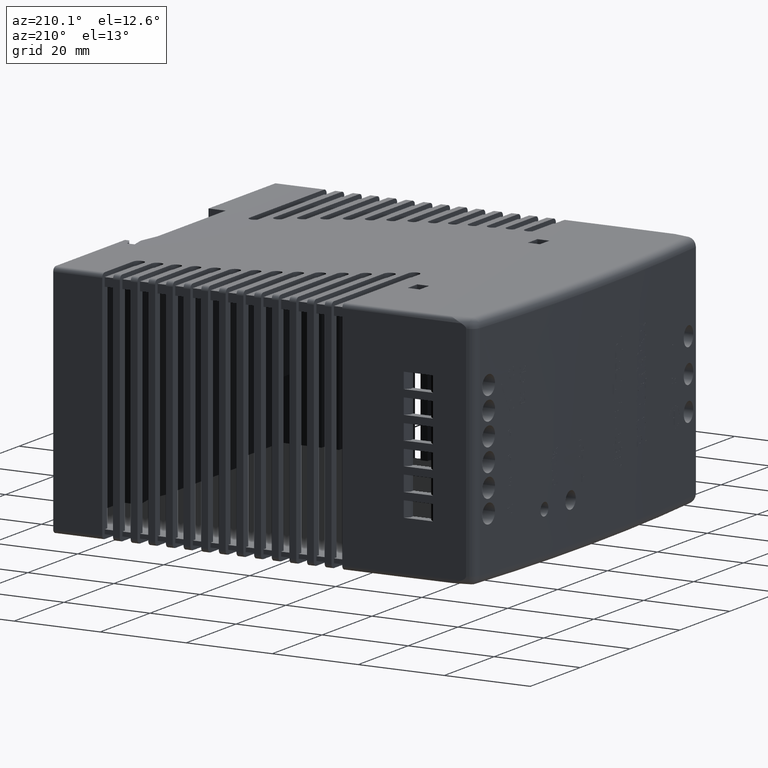
[diagram: clean part render]
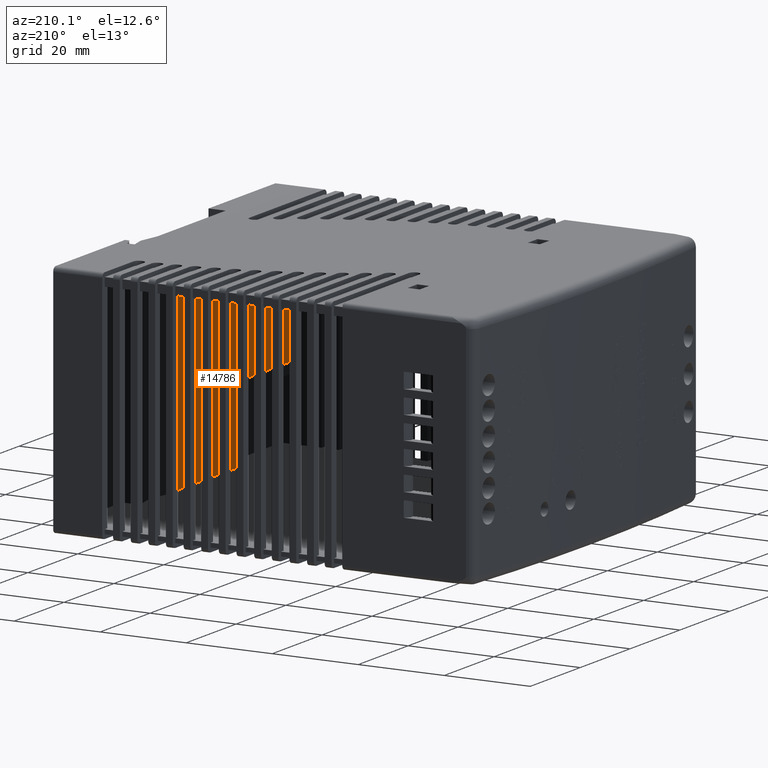
[diagram: same view with one face highlighted and labeled with its STEP entity id]
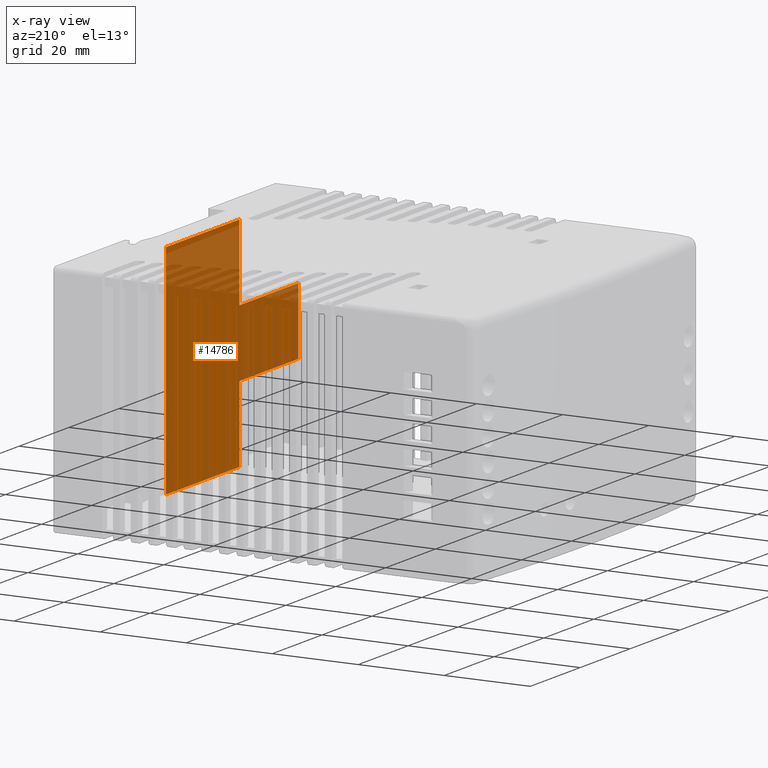
[diagram: x-ray of the same camera — body ghosted, the highlighted face saturated]
A machine part, auxiliary view. The second image highlights one B-rep face of the part: STEP entity #14786.
The next image is the same camera in x-ray: the body ghosted, the highlighted face saturated — about 75% of this face is hidden behind the body in this view.
In plain terms, the highlighted planar face has unit normal (1, 0, 0).
Its self-contained STEP definition (entity closure, byte-faithful):
#9848=CARTESIAN_POINT('',(42.583936774582554,10.720104148547074,19.700000000000006));
#9849=VERTEX_POINT('',#9848);
#9856=CARTESIAN_POINT('',(42.583936774582568,10.720104148547076,2.0));
#9857=VERTEX_POINT('',#9856);
#9858=CARTESIAN_POINT('',(42.583936774582568,10.720104148547076,2.0));
#9859=DIRECTION('',(0.0,0.0,1.0));
#9860=VECTOR('',#9859,17.700000000000006);
#9861=LINE('',#9858,#9860);
#9862=EDGE_CURVE('',#9857,#9849,#9861,.T.);
#9889=CARTESIAN_POINT('',(42.583936774582568,10.720104148547076,52.999999999999986));
#9890=VERTEX_POINT('',#9889);
#9897=CARTESIAN_POINT('',(42.583936774582554,10.720104148547074,35.300000000000004));
#9898=VERTEX_POINT('',#9897);
#9899=CARTESIAN_POINT('',(42.583936774582554,10.720104148547074,35.300000000000004));
#9900=DIRECTION('',(0.0,0.0,1.0));
#9901=VECTOR('',#9900,17.699999999999982);
#9902=LINE('',#9899,#9901);
#9903=EDGE_CURVE('',#9898,#9890,#9902,.T.);
#9921=CARTESIAN_POINT('',(42.583936774582554,-12.979895851452927,19.700000000000006));
#9922=VERTEX_POINT('',#9921);
#9929=CARTESIAN_POINT('',(42.583936774582554,10.720104148547074,19.700000000000006));
#9930=DIRECTION('',(0.0,-1.0,0.0));
#9931=VECTOR('',#9930,23.700000000000003);
#9932=LINE('',#9929,#9931);
#9933=EDGE_CURVE('',#9849,#9922,#9932,.T.);
#9945=CARTESIAN_POINT('',(42.583936774582554,-12.979895851452927,35.300000000000004));
#9946=VERTEX_POINT('',#9945);
#9955=CARTESIAN_POINT('',(42.583936774582554,10.720104148547074,35.300000000000004));
#9956=DIRECTION('',(0.0,-1.0,0.0));
#9957=VECTOR('',#9956,23.700000000000003);
#9958=LINE('',#9955,#9957);
#9959=EDGE_CURVE('',#9898,#9946,#9958,.T.);
#10318=CARTESIAN_POINT('',(42.583936774582554,-12.979895851452927,35.300000000000004));
#10319=DIRECTION('',(0.0,0.0,-1.0));
#10320=VECTOR('',#10319,15.599999999999998);
#10321=LINE('',#10318,#10320);
#10322=EDGE_CURVE('',#9946,#9922,#10321,.T.);
#11245=CARTESIAN_POINT('',(42.583936774582568,40.228449028388141,2.0));
#11246=VERTEX_POINT('',#11245);
#11247=CARTESIAN_POINT('',(42.583936774582568,40.228449028388141,2.0));
#11248=DIRECTION('',(0.0,-1.0,0.0));
#11249=VECTOR('',#11248,29.508344879841065);
#11250=LINE('',#11247,#11249);
#11251=EDGE_CURVE('',#11246,#9857,#11250,.T.);
#14759=CARTESIAN_POINT('',(42.583936774582575,40.053471701336292,0.0));
#14760=DIRECTION('',(1.0,0.0,0.0));
#14761=DIRECTION('',(0.0,0.0,-1.0));
#14762=AXIS2_PLACEMENT_3D('',#14759,#14760,#14761);
#14763=PLANE('',#14762);
#14764=CARTESIAN_POINT('',(42.583936774582568,40.228449028388141,52.999999999999986));
#14765=VERTEX_POINT('',#14764);
#14766=CARTESIAN_POINT('',(42.583936774582568,40.228449028388141,52.999999999999986));
#14767=DIRECTION('',(0.0,-1.0,0.0));
#14768=VECTOR('',#14767,29.508344879841065);
#14769=LINE('',#14766,#14768);
#14770=EDGE_CURVE('',#14765,#9890,#14769,.T.);
#14771=ORIENTED_EDGE('',*,*,#14770,.F.);
#14772=CARTESIAN_POINT('',(42.583936774582568,40.228449028388141,2.0));
#14773=DIRECTION('',(0.0,0.0,1.0));
#14774=VECTOR('',#14773,50.999999999999986);
#14775=LINE('',#14772,#14774);
#14776=EDGE_CURVE('',#11246,#14765,#14775,.T.);
#14777=ORIENTED_EDGE('',*,*,#14776,.F.);
#14778=ORIENTED_EDGE('',*,*,#11251,.T.);
#14779=ORIENTED_EDGE('',*,*,#9862,.T.);
#14780=ORIENTED_EDGE('',*,*,#9933,.T.);
#14781=ORIENTED_EDGE('',*,*,#10322,.F.);
#14782=ORIENTED_EDGE('',*,*,#9959,.F.);
#14783=ORIENTED_EDGE('',*,*,#9903,.T.);
#14784=EDGE_LOOP('',(#14771,#14777,#14778,#14779,#14780,#14781,#14782,#14783));
#14785=FACE_OUTER_BOUND('',#14784,.T.);
#14786=ADVANCED_FACE('',(#14785),#14763,.F.);